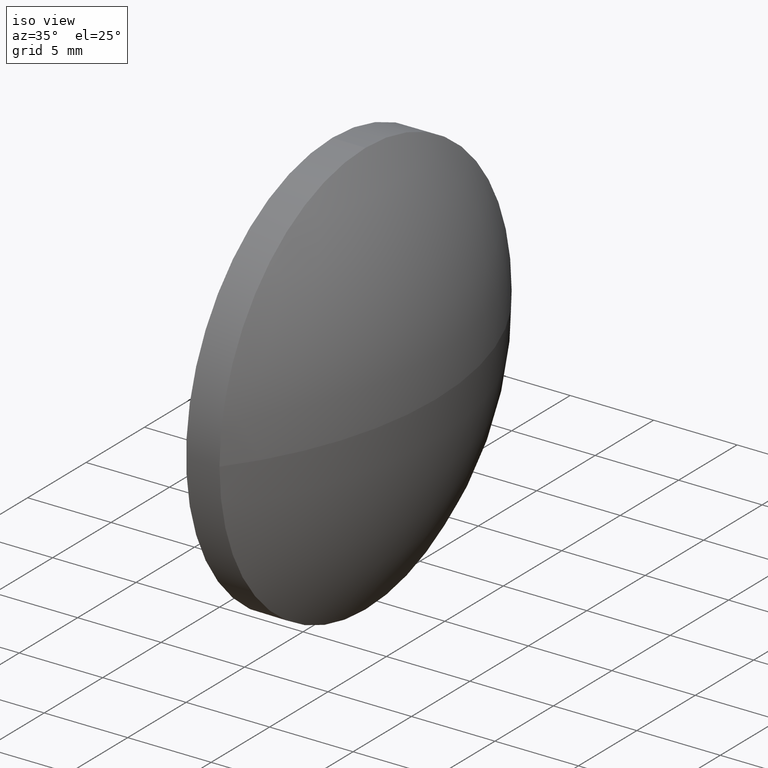
[diagram: clean part render]
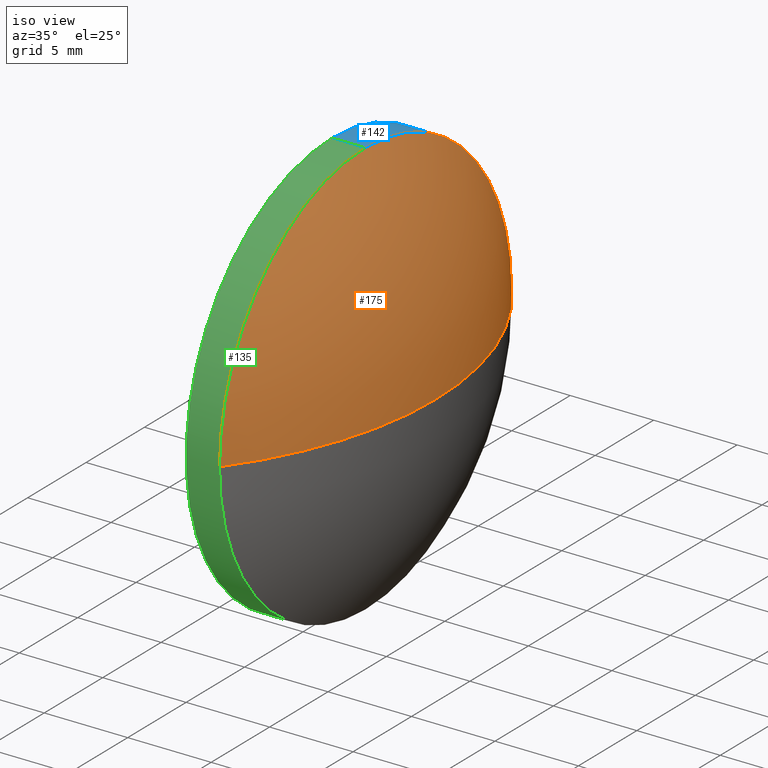
[diagram: same view with three faces highlighted in distinct colors, each labeled with its STEP entity id]
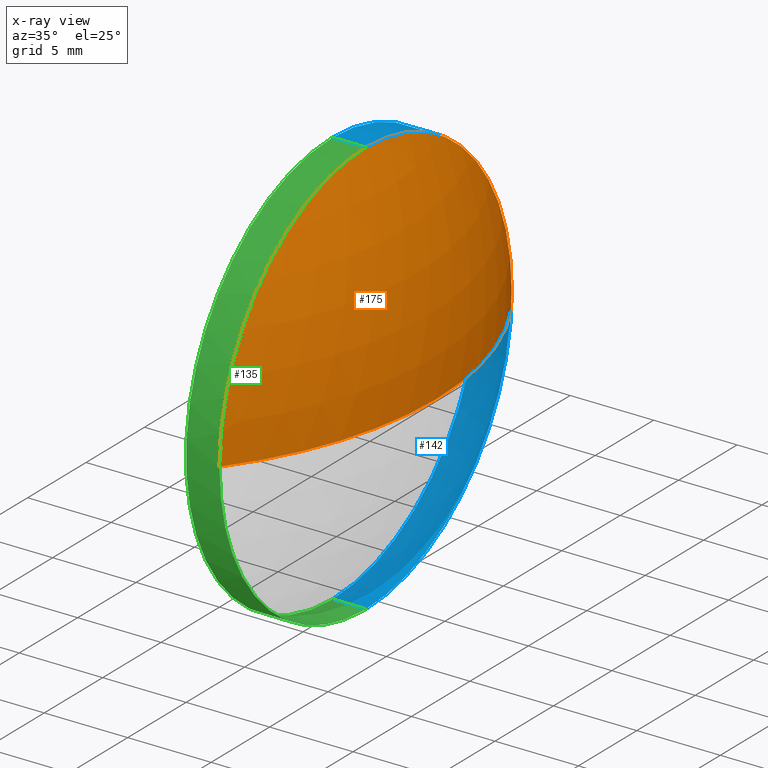
[diagram: x-ray of the same camera — body ghosted, the three highlighted faces saturated]
A machine part, iso view with three faces highlighted in distinct colors.
The next image is the same camera in x-ray (body ghosted, the three faces saturated) — at least one of them is partly hidden behind the body in this view.
Their STEP definitions:

[orange] entity #175 — the highlighted spherical surface has radius 20.662 mm.
#1 = CIRCLE ( 'NONE', #129, 12.49999999999999600 ) ;
#13 = AXIS2_PLACEMENT_3D ( 'NONE', #153, #106, #120 ) ;
#14 = ORIENTED_EDGE ( 'NONE', *, *, #73, .F. ) ;
#15 = EDGE_CURVE ( 'NONE', #99, #28, #68, .T. ) ;
#17 = DIRECTION ( 'NONE',  ( 0.0000000000000000000, 0.0000000000000000000, 1.000000000000000000 ) ) ;
#19 = DIRECTION ( 'NONE',  ( 0.0000000000000000000, 0.0000000000000000000, 1.000000000000000000 ) ) ;
#26 = DIRECTION ( 'NONE',  ( 0.0000000000000000000, -1.000000000000000000, 0.0000000000000000000 ) ) ;
#28 = VERTEX_POINT ( 'NONE', #185 ) ;
#29 = FACE_OUTER_BOUND ( 'NONE', #158, .T. ) ;
#31 = CIRCLE ( 'NONE', #13, 20.66200712589070300 ) ;
#36 = CARTESIAN_POINT ( 'NONE',  ( 636.6865859254612600, 47.94655312557324600, 12.49999999999999600 ) ) ;
#37 = DIRECTION ( 'NONE',  ( -1.000000000000000000, -0.0000000000000000000, -0.0000000000000000000 ) ) ;
#48 = DIRECTION ( 'NONE',  ( 0.0000000000000000000, 0.0000000000000000000, -1.000000000000000000 ) ) ;
#50 = CARTESIAN_POINT ( 'NONE',  ( 636.6865859254612600, 47.94655312557324600, 0.0000000000000000000 ) ) ;
#62 = ORIENTED_EDGE ( 'NONE', *, *, #107, .F. ) ;
#65 = CIRCLE ( 'NONE', #128, 20.66200712589072500 ) ;
#67 = DIRECTION ( 'NONE',  ( -1.000000000000000000, -0.0000000000000000000, -0.0000000000000000000 ) ) ;
#68 = CIRCLE ( 'NONE', #115, 12.49999999999999600 ) ;
#73 = EDGE_CURVE ( 'NONE', #133, #79, #65, .T. ) ;
#76 = DIRECTION ( 'NONE',  ( -1.000000000000000000, 0.0000000000000000000, 0.0000000000000000000 ) ) ;
#79 = VERTEX_POINT ( 'NONE', #179 ) ;
#94 = SPHERICAL_SURFACE ( 'NONE', #125, 20.66200712589070300 ) ;
#95 = CARTESIAN_POINT ( 'NONE',  ( 640.8965859254613000, 47.94655312557325300, 0.0000000000000000000 ) ) ;
#99 = VERTEX_POINT ( 'NONE', #36 ) ;
#106 = DIRECTION ( 'NONE',  ( 0.0000000000000000000, -1.224646799147353200E-016, 1.000000000000000000 ) ) ;
#107 = EDGE_CURVE ( 'NONE', #79, #99, #1, .T. ) ;
#115 = AXIS2_PLACEMENT_3D ( 'NONE', #143, #67, #19 ) ;
#118 = EDGE_CURVE ( 'NONE', #133, #28, #31, .T. ) ;
#120 = DIRECTION ( 'NONE',  ( 0.0000000000000000000, -1.000000000000000000, -1.224646799147353200E-016 ) ) ;
#125 = AXIS2_PLACEMENT_3D ( 'NONE', #130, #147, #26 ) ;
#128 = AXIS2_PLACEMENT_3D ( 'NONE', #182, #48, #76 ) ;
#129 = AXIS2_PLACEMENT_3D ( 'NONE', #50, #37, #17 ) ;
#130 = CARTESIAN_POINT ( 'NONE',  ( 620.2345787995706100, 47.94655312557325300, 0.0000000000000000000 ) ) ;
#131 = ORIENTED_EDGE ( 'NONE', *, *, #15, .F. ) ;
#133 = VERTEX_POINT ( 'NONE', #95 ) ;
#143 = CARTESIAN_POINT ( 'NONE',  ( 636.6865859254612600, 47.94655312557324600, 0.0000000000000000000 ) ) ;
#147 = DIRECTION ( 'NONE',  ( 0.0000000000000000000, 0.0000000000000000000, 1.000000000000000000 ) ) ;
#153 = CARTESIAN_POINT ( 'NONE',  ( 620.2345787995706100, 47.94655312557325300, 0.0000000000000000000 ) ) ;
#158 = EDGE_LOOP ( 'NONE', ( #14, #184, #131, #62 ) ) ;
#175 = ADVANCED_FACE ( 'NONE', ( #29 ), #94, .T. ) ;
#179 = CARTESIAN_POINT ( 'NONE',  ( 636.6865859254612600, 35.44655312557323900, 0.0000000000000000000 ) ) ;
#182 = CARTESIAN_POINT ( 'NONE',  ( 620.2345787995706100, 47.94655312557325300, 0.0000000000000000000 ) ) ;
#184 = ORIENTED_EDGE ( 'NONE', *, *, #118, .T. ) ;
#185 = CARTESIAN_POINT ( 'NONE',  ( 636.6865859254612600, 60.44655312557326000, 1.530808498934192300E-015 ) ) ;

[blue] entity #142 — the highlighted cylindrical surface (partial cylindrical patch) has radius 12.5 mm, axis along (-1, -0, -0).
#4 = DIRECTION ( 'NONE',  ( -1.000000000000000000, -0.0000000000000000000, -0.0000000000000000000 ) ) ;
#6 = ORIENTED_EDGE ( 'NONE', *, *, #103, .F. ) ;
#9 = CARTESIAN_POINT ( 'NONE',  ( 632.6574783470242700, 47.94655312557324600, 12.49999999999999600 ) ) ;
#15 = EDGE_CURVE ( 'NONE', #99, #28, #68, .T. ) ;
#19 = DIRECTION ( 'NONE',  ( 0.0000000000000000000, 0.0000000000000000000, 1.000000000000000000 ) ) ;
#20 = DIRECTION ( 'NONE',  ( -1.000000000000000000, -0.0000000000000000000, -0.0000000000000000000 ) ) ;
#25 = CYLINDRICAL_SURFACE ( 'NONE', #165, 12.49999999999999600 ) ;
#28 = VERTEX_POINT ( 'NONE', #185 ) ;
#36 = CARTESIAN_POINT ( 'NONE',  ( 636.6865859254612600, 47.94655312557324600, 12.49999999999999600 ) ) ;
#39 = EDGE_CURVE ( 'NONE', #99, #137, #181, .T. ) ;
#46 = ORIENTED_EDGE ( 'NONE', *, *, #114, .T. ) ;
#49 = DIRECTION ( 'NONE',  ( 0.0000000000000000000, 0.0000000000000000000, 1.000000000000000000 ) ) ;
#51 = ORIENTED_EDGE ( 'NONE', *, *, #89, .T. ) ;
#63 = LINE ( 'NONE', #145, #160 ) ;
#66 = CARTESIAN_POINT ( 'NONE',  ( 632.6574783470242700, 47.94655312557324600, 0.0000000000000000000 ) ) ;
#67 = DIRECTION ( 'NONE',  ( -1.000000000000000000, -0.0000000000000000000, -0.0000000000000000000 ) ) ;
#68 = CIRCLE ( 'NONE', #115, 12.49999999999999600 ) ;
#72 = CIRCLE ( 'NONE', #132, 12.49999999999999600 ) ;
#85 = VECTOR ( 'NONE', #144, 1000.000000000000000 ) ;
#88 = ORIENTED_EDGE ( 'NONE', *, *, #39, .F. ) ;
#89 = EDGE_CURVE ( 'NONE', #28, #170, #72, .T. ) ;
#91 = DIRECTION ( 'NONE',  ( 0.0000000000000000000, 0.0000000000000000000, 1.000000000000000000 ) ) ;
#92 = DIRECTION ( 'NONE',  ( 0.0000000000000000000, 0.0000000000000000000, 1.000000000000000000 ) ) ;
#96 = EDGE_LOOP ( 'NONE', ( #51, #46, #6, #88, #126 ) ) ;
#99 = VERTEX_POINT ( 'NONE', #36 ) ;
#103 = EDGE_CURVE ( 'NONE', #137, #152, #134, .T. ) ;
#104 = FACE_OUTER_BOUND ( 'NONE', #96, .T. ) ;
#110 = CARTESIAN_POINT ( 'NONE',  ( 636.6865859254612600, 47.94655312557324600, 0.0000000000000000000 ) ) ;
#114 = EDGE_CURVE ( 'NONE', #170, #152, #63, .T. ) ;
#115 = AXIS2_PLACEMENT_3D ( 'NONE', #143, #67, #19 ) ;
#123 = CARTESIAN_POINT ( 'NONE',  ( 636.6865859254612600, 47.94655312557324600, -12.49999999999999600 ) ) ;
#126 = ORIENTED_EDGE ( 'NONE', *, *, #15, .T. ) ;
#132 = AXIS2_PLACEMENT_3D ( 'NONE', #110, #178, #49 ) ;
#134 = CIRCLE ( 'NONE', #136, 12.49999999999999600 ) ;
#136 = AXIS2_PLACEMENT_3D ( 'NONE', #139, #20, #91 ) ;
#137 = VERTEX_POINT ( 'NONE', #169 ) ;
#139 = CARTESIAN_POINT ( 'NONE',  ( 634.6865859254612600, 47.94655312557324600, 0.0000000000000000000 ) ) ;
#142 = ADVANCED_FACE ( 'NONE', ( #104 ), #25, .T. ) ;
#143 = CARTESIAN_POINT ( 'NONE',  ( 636.6865859254612600, 47.94655312557324600, 0.0000000000000000000 ) ) ;
#144 = DIRECTION ( 'NONE',  ( -1.000000000000000000, -0.0000000000000000000, -0.0000000000000000000 ) ) ;
#145 = CARTESIAN_POINT ( 'NONE',  ( 632.6574783470242700, 47.94655312557324600, -12.49999999999999600 ) ) ;
#152 = VERTEX_POINT ( 'NONE', #172 ) ;
#160 = VECTOR ( 'NONE', #4, 1000.000000000000000 ) ;
#165 = AXIS2_PLACEMENT_3D ( 'NONE', #66, #180, #92 ) ;
#169 = CARTESIAN_POINT ( 'NONE',  ( 634.6865859254612600, 47.94655312557324600, 12.49999999999999600 ) ) ;
#170 = VERTEX_POINT ( 'NONE', #123 ) ;
#172 = CARTESIAN_POINT ( 'NONE',  ( 634.6865859254612600, 47.94655312557324600, -12.49999999999999600 ) ) ;
#178 = DIRECTION ( 'NONE',  ( -1.000000000000000000, -0.0000000000000000000, -0.0000000000000000000 ) ) ;
#180 = DIRECTION ( 'NONE',  ( -1.000000000000000000, -0.0000000000000000000, -0.0000000000000000000 ) ) ;
#181 = LINE ( 'NONE', #9, #85 ) ;
#185 = CARTESIAN_POINT ( 'NONE',  ( 636.6865859254612600, 60.44655312557326000, 1.530808498934192300E-015 ) ) ;

[green] entity #135 — the highlighted cylindrical surface (partial cylindrical patch) has radius 12.5 mm, axis along (-1, -0, -0).
#1 = CIRCLE ( 'NONE', #129, 12.49999999999999600 ) ;
#3 = CARTESIAN_POINT ( 'NONE',  ( 632.6574783470242700, 47.94655312557324600, 0.0000000000000000000 ) ) ;
#4 = DIRECTION ( 'NONE',  ( -1.000000000000000000, -0.0000000000000000000, -0.0000000000000000000 ) ) ;
#9 = CARTESIAN_POINT ( 'NONE',  ( 632.6574783470242700, 47.94655312557324600, 12.49999999999999600 ) ) ;
#10 = EDGE_CURVE ( 'NONE', #170, #79, #186, .T. ) ;
#17 = DIRECTION ( 'NONE',  ( 0.0000000000000000000, 0.0000000000000000000, 1.000000000000000000 ) ) ;
#35 = DIRECTION ( 'NONE',  ( -1.000000000000000000, -0.0000000000000000000, -0.0000000000000000000 ) ) ;
#36 = CARTESIAN_POINT ( 'NONE',  ( 636.6865859254612600, 47.94655312557324600, 12.49999999999999600 ) ) ;
#37 = DIRECTION ( 'NONE',  ( -1.000000000000000000, -0.0000000000000000000, -0.0000000000000000000 ) ) ;
#39 = EDGE_CURVE ( 'NONE', #99, #137, #181, .T. ) ;
#50 = CARTESIAN_POINT ( 'NONE',  ( 636.6865859254612600, 47.94655312557324600, 0.0000000000000000000 ) ) ;
#52 = DIRECTION ( 'NONE',  ( 0.0000000000000000000, 0.0000000000000000000, 1.000000000000000000 ) ) ;
#57 = FACE_OUTER_BOUND ( 'NONE', #174, .T. ) ;
#60 = ORIENTED_EDGE ( 'NONE', *, *, #39, .T. ) ;
#63 = LINE ( 'NONE', #145, #160 ) ;
#70 = CARTESIAN_POINT ( 'NONE',  ( 634.6865859254612600, 47.94655312557324600, 0.0000000000000000000 ) ) ;
#75 = AXIS2_PLACEMENT_3D ( 'NONE', #141, #157, #77 ) ;
#77 = DIRECTION ( 'NONE',  ( 0.0000000000000000000, 0.0000000000000000000, 1.000000000000000000 ) ) ;
#78 = DIRECTION ( 'NONE',  ( 0.0000000000000000000, 0.0000000000000000000, 1.000000000000000000 ) ) ;
#79 = VERTEX_POINT ( 'NONE', #179 ) ;
#85 = VECTOR ( 'NONE', #144, 1000.000000000000000 ) ;
#90 = CIRCLE ( 'NONE', #156, 12.49999999999999600 ) ;
#99 = VERTEX_POINT ( 'NONE', #36 ) ;
#101 = ORIENTED_EDGE ( 'NONE', *, *, #10, .T. ) ;
#107 = EDGE_CURVE ( 'NONE', #79, #99, #1, .T. ) ;
#114 = EDGE_CURVE ( 'NONE', #170, #152, #63, .T. ) ;
#116 = EDGE_CURVE ( 'NONE', #152, #137, #90, .T. ) ;
#121 = DIRECTION ( 'NONE',  ( -1.000000000000000000, -0.0000000000000000000, -0.0000000000000000000 ) ) ;
#123 = CARTESIAN_POINT ( 'NONE',  ( 636.6865859254612600, 47.94655312557324600, -12.49999999999999600 ) ) ;
#124 = ORIENTED_EDGE ( 'NONE', *, *, #114, .F. ) ;
#129 = AXIS2_PLACEMENT_3D ( 'NONE', #50, #37, #17 ) ;
#135 = ADVANCED_FACE ( 'NONE', ( #57 ), #167, .T. ) ;
#137 = VERTEX_POINT ( 'NONE', #169 ) ;
#140 = AXIS2_PLACEMENT_3D ( 'NONE', #3, #35, #52 ) ;
#141 = CARTESIAN_POINT ( 'NONE',  ( 636.6865859254612600, 47.94655312557324600, 0.0000000000000000000 ) ) ;
#144 = DIRECTION ( 'NONE',  ( -1.000000000000000000, -0.0000000000000000000, -0.0000000000000000000 ) ) ;
#145 = CARTESIAN_POINT ( 'NONE',  ( 632.6574783470242700, 47.94655312557324600, -12.49999999999999600 ) ) ;
#152 = VERTEX_POINT ( 'NONE', #172 ) ;
#156 = AXIS2_PLACEMENT_3D ( 'NONE', #70, #121, #78 ) ;
#157 = DIRECTION ( 'NONE',  ( -1.000000000000000000, -0.0000000000000000000, -0.0000000000000000000 ) ) ;
#160 = VECTOR ( 'NONE', #4, 1000.000000000000000 ) ;
#166 = ORIENTED_EDGE ( 'NONE', *, *, #116, .F. ) ;
#167 = CYLINDRICAL_SURFACE ( 'NONE', #140, 12.49999999999999600 ) ;
#169 = CARTESIAN_POINT ( 'NONE',  ( 634.6865859254612600, 47.94655312557324600, 12.49999999999999600 ) ) ;
#170 = VERTEX_POINT ( 'NONE', #123 ) ;
#172 = CARTESIAN_POINT ( 'NONE',  ( 634.6865859254612600, 47.94655312557324600, -12.49999999999999600 ) ) ;
#173 = ORIENTED_EDGE ( 'NONE', *, *, #107, .T. ) ;
#174 = EDGE_LOOP ( 'NONE', ( #124, #101, #173, #60, #166 ) ) ;
#179 = CARTESIAN_POINT ( 'NONE',  ( 636.6865859254612600, 35.44655312557323900, 0.0000000000000000000 ) ) ;
#181 = LINE ( 'NONE', #9, #85 ) ;
#186 = CIRCLE ( 'NONE', #75, 12.49999999999999600 ) ;